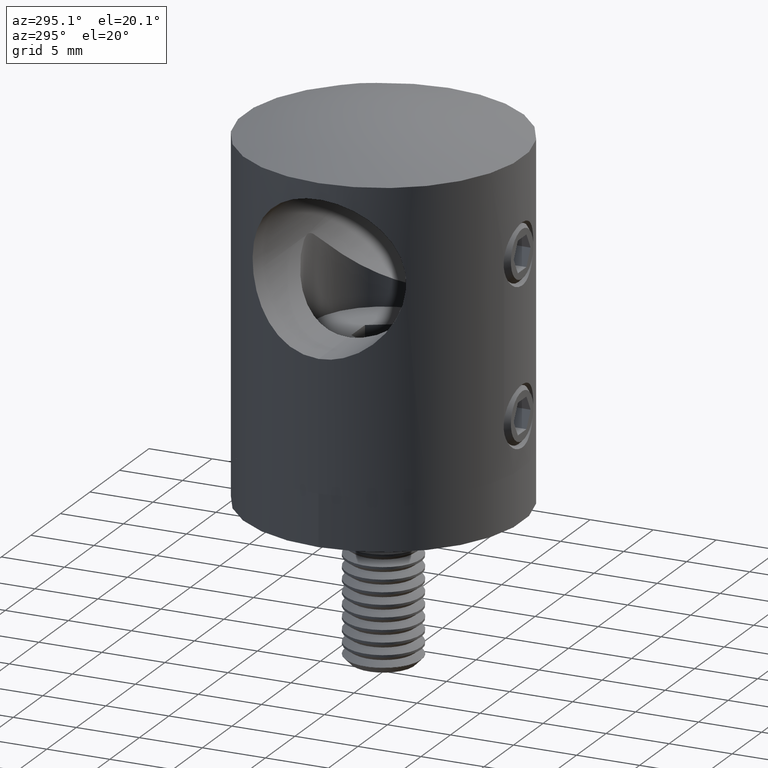
[diagram: clean part render]
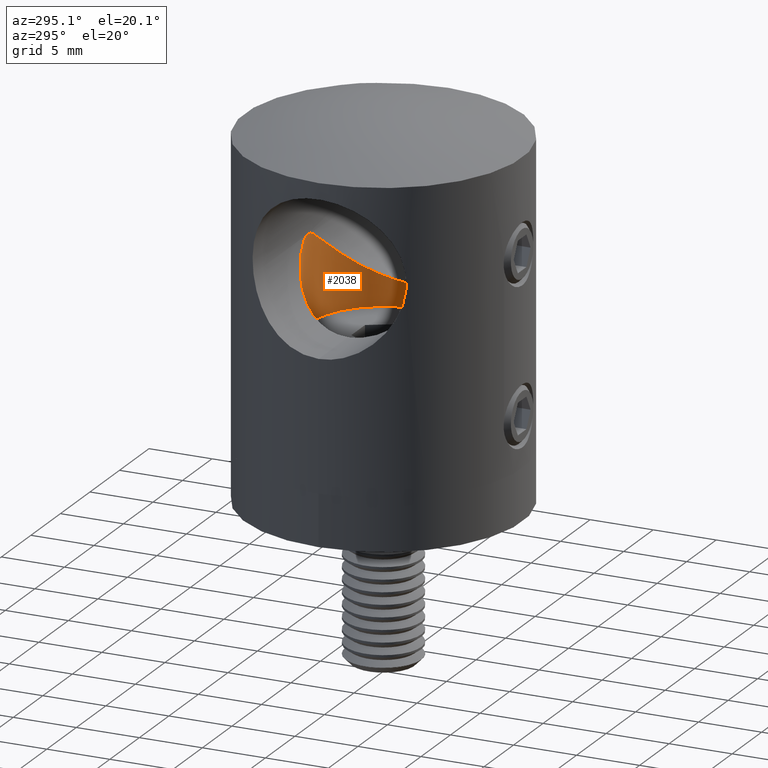
[diagram: same view with one face highlighted and labeled with its STEP entity id]
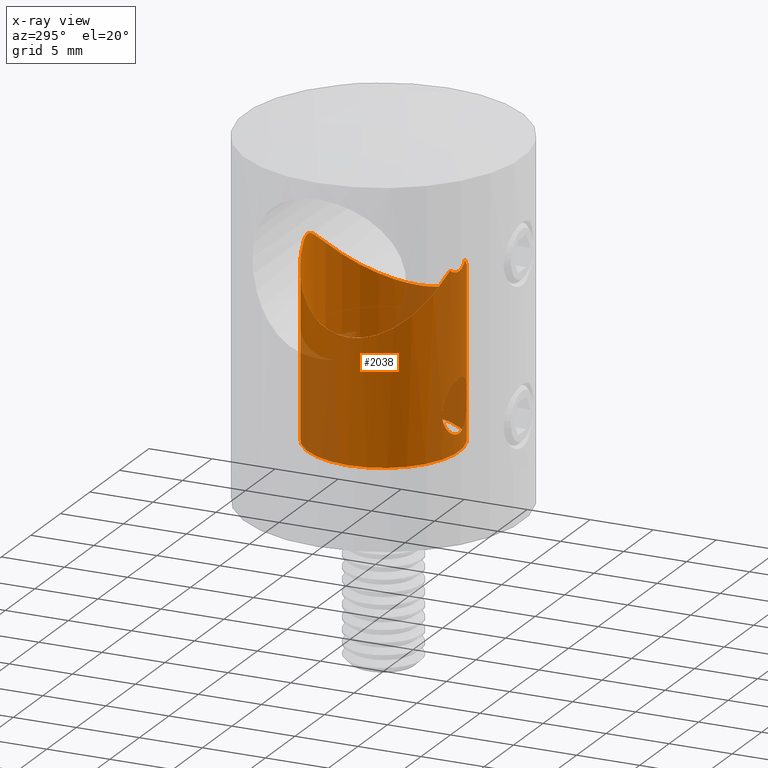
[diagram: x-ray of the same camera — body ghosted, the highlighted face saturated]
A machine part, auxiliary view. The second image highlights one B-rep face of the part: STEP entity #2038.
The next image is the same camera in x-ray: the body ghosted, the highlighted face saturated — about 33% of this face is hidden behind the body in this view.
In plain terms, the highlighted cylindrical surface (bore or boss wall) has radius 6 mm, axis along (-0, -0, -1).
Its self-contained STEP definition (entity closure, byte-faithful):
#235 = CARTESIAN_POINT ( 'NONE',  ( 0.8801635977738078200, -5.935946949044834200, 14.49004079695533600 ) ) ;
#311 = CARTESIAN_POINT ( 'NONE',  ( -0.1149597397000388500, -5.999984494786469100, 14.30004430061299700 ) ) ;
#462 = CARTESIAN_POINT ( 'NONE',  ( -1.677594955765174600, -5.764126152619212500, 2.707790437232916700 ) ) ;
#533 = CARTESIAN_POINT ( 'NONE',  ( -5.421010862427522200E-017, -6.000000000000001800, 1.900000000000007200 ) ) ;
#552 = FACE_BOUND ( 'NONE', #20702, .T. ) ;
#593 = CARTESIAN_POINT ( 'NONE',  ( -1.974343393290134400, 5.668232699227719900, 14.14100178713926900 ) ) ;
#612 = CARTESIAN_POINT ( 'NONE',  ( -0.2773106023340089500, -5.995110587510879400, 1.913857049664069200 ) ) ;
#680 = CARTESIAN_POINT ( 'NONE',  ( -0.1370357647622484900, -6.000018211104130500, 6.100052031729359400 ) ) ;
#750 = CARTESIAN_POINT ( 'NONE',  ( 2.086195265504057000, -5.625710555255438700, 4.277106224398222500 ) ) ;
#801 = CARTESIAN_POINT ( 'NONE',  ( -1.332703421794332800, 5.852720188143624800, 14.67597872737485600 ) ) ;
#830 = EDGE_CURVE ( 'NONE', #7178, #7178, #2639, .T. ) ;
#873 = CARTESIAN_POINT ( 'NONE',  ( -0.9904083631493659800, 5.920263785117187500, 14.92451375343655900 ) ) ;
#1094 = CARTESIAN_POINT ( 'NONE',  ( 5.605361300588310900, -2.179277337316793100, 10.68777264113116800 ) ) ;
#1170 = CARTESIAN_POINT ( 'NONE',  ( 4.796370260078870000, 3.622636291200091600, 11.47941165405563300 ) ) ;
#1247 = CARTESIAN_POINT ( 'NONE',  ( 5.385464049383036100, 2.652474965956620200, 10.90336773577465100 ) ) ;
#1433 = ORIENTED_EDGE ( 'NONE', *, *, #830, .T. ) ;
#2031 = CARTESIAN_POINT ( 'NONE',  ( -0.2299441652094728900, -5.996634862554706100, 14.30956275673135500 ) ) ;
#2038 = ADVANCED_FACE ( 'NONE', ( #552, #12456, #9735 ), #14089, .F. ) ;
#2104 = CARTESIAN_POINT ( 'NONE',  ( 1.990963533487665200, -5.660313271408463200, 3.318295880892016200 ) ) ;
#2181 = CARTESIAN_POINT ( 'NONE',  ( 1.388251816607981800, -5.838037281970530400, 5.581575950864485800 ) ) ;
#2257 = CARTESIAN_POINT ( 'NONE',  ( -0.6799031944775879600, -5.962726470154970900, 5.991631115680869300 ) ) ;
#2307 = CARTESIAN_POINT ( 'NONE',  ( -5.058933925122087100, -3.248349520662636300, 11.22299575467066600 ) ) ;
#2325 = CARTESIAN_POINT ( 'NONE',  ( 2.099901555218821200, -5.620534980703876500, 3.860305477660864500 ) ) ;
#2395 = CARTESIAN_POINT ( 'NONE',  ( -1.056301083882023900, -5.907416619898390800, 5.820119853568162000 ) ) ;
#2452 = CARTESIAN_POINT ( 'NONE',  ( -4.389148418959240200, -4.106772419858628200, 11.87542505124078000 ) ) ;
#2471 = CARTESIAN_POINT ( 'NONE',  ( -0.2760850920997860400, -5.995199655506469000, 6.086402343784770100 ) ) ;
#2527 = CARTESIAN_POINT ( 'NONE',  ( 1.488808073474398000, 5.822726451356348100, 14.56400330598997400 ) ) ;
#2601 = CARTESIAN_POINT ( 'NONE',  ( 6.002171018118881200, -0.1365986633456808300, 10.29786457832679500 ) ) ;
#2639 = B_SPLINE_CURVE_WITH_KNOTS ( 'NONE', 3,
 ( #9266, #21340, #18842, #8496, #7052, #8796, #17873, #7518, #12169, #16029, #4837, #2104, #10887, #4208, #2325, #14596, #750, #11033, #5656, #12629, #9300, #9068, #10961, #2181, #9216, #12704, #7637, #14451, #5728, #12853, #5808, #680, #2471, #3923, #2257, #12776, #2395, #7560, #16326, #21294, #5958, #3994, #17919, #18067, #7413, #19485, #19411, #21148, #10813, #17840, #462, #16027, #16101, #17769, #7488, #21221, #12551, #612, #21367, #533 ),
 .UNSPECIFIED., .T., .F.,
 ( 4, 2, 2, 2, 2, 2, 2, 2, 2, 2, 2, 2, 2, 2, 2, 2, 2, 2, 2, 2, 2, 2, 2, 2, 2, 2, 2, 2, 2, 4 ),
 ( 0.0000000000000000000, 0.0004135997285890928200, 0.0008271994571781854200, 0.001240799185767278200, 0.001654398914356370600, 0.002481598371534556400, 0.002895198100123648800, 0.003308797828712741300, 0.003722397557301833300, 0.004135997285890926100, 0.004549597014480017700, 0.004963196743069110200, 0.005376796471658201700, 0.005790396200247294200, 0.006203995928836386600, 0.006617595657425478200, 0.007031195386014570600, 0.007444795114603662200, 0.007858394843192756400, 0.008271994571781848800, 0.009099194028960033700, 0.009512793757549127900, 0.009926393486138223800, 0.01033999321472731600, 0.01075359294331641200, 0.01158079240049460000, 0.01199439212908369600, 0.01240799185767279400, 0.01282159158626188800, 0.01323519131485098400 ),
 .UNSPECIFIED. ) ;
#3614 = CARTESIAN_POINT ( 'NONE',  ( -1.175500511496628200, -5.884434095120775900, 14.65622688438423700 ) ) ;
#3690 = CARTESIAN_POINT ( 'NONE',  ( -0.5626821485871803500, -5.974533160696336300, 14.37362251894191800 ) ) ;
#3888 = CARTESIAN_POINT ( 'NONE',  ( 6.000000000000000900, 0.0000000000000000000, 0.5000000000000073300 ) ) ;
#3923 = CARTESIAN_POINT ( 'NONE',  ( -0.5485102145950172500, -5.976435261253112900, 6.031854882297268200 ) ) ;
#3978 = CARTESIAN_POINT ( 'NONE',  ( 3.553350730415342900, 4.846567782642080300, 12.68099178015578100 ) ) ;
#3994 = CARTESIAN_POINT ( 'NONE',  ( -1.991790499454957100, -5.660027428170497600, 4.679568982034624000 ) ) ;
#4115 = CARTESIAN_POINT ( 'NONE',  ( -5.941325751448900400, 0.8632317753215782400, 10.35770454943839500 ) ) ;
#4190 = CARTESIAN_POINT ( 'NONE',  ( -4.097552072176873700, 4.396346292867046500, 12.15799220229235900 ) ) ;
#4208 = CARTESIAN_POINT ( 'NONE',  ( 2.086293483836122700, -5.625674900985020000, 3.723311567177205000 ) ) ;
#4264 = CARTESIAN_POINT ( 'NONE',  ( -0.2229703841922922900, 5.999711123325627500, 15.29842435081656600 ) ) ;
#4335 = CARTESIAN_POINT ( 'NONE',  ( 5.933619609980066700, -0.9863462721743108100, 10.36528464065996500 ) ) ;
#4462 = ORIENTED_EDGE ( 'NONE', *, *, #18579, .T. ) ;
#4489 = CARTESIAN_POINT ( 'NONE',  ( 5.898167603611800500, 1.120429336238712500, 10.40014097301561200 ) ) ;
#4573 = DIRECTION ( 'NONE',  ( -0.0000000000000000000, -0.0000000000000000000, -1.000000000000000000 ) ) ;
#4837 = CARTESIAN_POINT ( 'NONE',  ( 1.833344241584947000, -5.714120875558134700, 2.940059396667278300 ) ) ;
#5272 = CARTESIAN_POINT ( 'NONE',  ( -0.4532239645654775900, -5.983902742513780700, 14.34637144909259200 ) ) ;
#5656 = CARTESIAN_POINT ( 'NONE',  ( 1.992054000542895300, -5.659936331073166300, 4.678887825467367800 ) ) ;
#5712 = CARTESIAN_POINT ( 'NONE',  ( 0.7984645737163839100, 5.949732835224148500, 15.05108044348809700 ) ) ;
#5728 = CARTESIAN_POINT ( 'NONE',  ( 0.5499592264330737100, -5.976299791409975800, 6.031457407392960800 ) ) ;
#5788 = CARTESIAN_POINT ( 'NONE',  ( -5.907493718958915200, 1.070115368251027600, 10.39097219733359800 ) ) ;
#5808 = CARTESIAN_POINT ( 'NONE',  ( 0.1386258689238649400, -5.999981683544565800, 6.099947667266898000 ) ) ;
#5867 = CARTESIAN_POINT ( 'NONE',  ( -1.596766314802774200, -5.793581575468227400, 14.47328231479936100 ) ) ;
#5937 = CARTESIAN_POINT ( 'NONE',  ( -1.817385701289969900, 5.720573112531241100, 14.27749625758165000 ) ) ;
#5958 = CARTESIAN_POINT ( 'NONE',  ( -1.832704397464457200, -5.714346342055216100, 5.061775951773686400 ) ) ;
#6016 = CARTESIAN_POINT ( 'NONE',  ( -3.630156631122732200, -4.789113362133579500, 12.60748802911717600 ) ) ;
#6085 = CARTESIAN_POINT ( 'NONE',  ( 4.861354902096104000, -3.521632493673705800, 11.41579888962308900 ) ) ;
#6101 = CARTESIAN_POINT ( 'NONE',  ( 0.0000000000000000000, 0.0000000000000000000, 16.39999999999999900 ) ) ;
#6159 = CARTESIAN_POINT ( 'NONE',  ( 3.641122164734124800, -4.781310034785559700, 12.59701020878115300 ) ) ;
#6238 = CARTESIAN_POINT ( 'NONE',  ( 5.933879885055172400, 0.9127216642812178100, 10.36502605593457100 ) ) ;
#6550 = VERTEX_POINT ( 'NONE', #17566 ) ;
#7021 = CARTESIAN_POINT ( 'NONE',  ( 0.2262906796923143900, -5.996776658554771300, 14.30915733862779900 ) ) ;
#7052 = CARTESIAN_POINT ( 'NONE',  ( 0.6812341139050355200, -5.962577447961941800, 2.008811109739972300 ) ) ;
#7178 = VERTEX_POINT ( 'NONE', #16992 ) ;
#7413 = CARTESIAN_POINT ( 'NONE',  ( -2.100005955277873600, -5.620495973474043600, 4.138307198453890800 ) ) ;
#7466 = CARTESIAN_POINT ( 'NONE',  ( 4.077951799122588200, 4.414275683407217900, 12.17691918122648100 ) ) ;
#7488 = CARTESIAN_POINT ( 'NONE',  ( -0.9349122421464504100, -5.928103206872799900, 2.114551264284959300 ) ) ;
#7518 = CARTESIAN_POINT ( 'NONE',  ( 1.282773082496065000, -5.862417377531365900, 2.331696866173552900 ) ) ;
#7560 = CARTESIAN_POINT ( 'NONE',  ( -1.282893921177701100, -5.862382304820062700, 5.668170089699676100 ) ) ;
#7617 = CARTESIAN_POINT ( 'NONE',  ( -3.569507124002474700, 4.834915987140045800, 12.66555515773551500 ) ) ;
#7637 = CARTESIAN_POINT ( 'NONE',  ( 0.9337857770029868200, -5.928263369488840700, 5.885943294885849200 ) ) ;
#7695 = CARTESIAN_POINT ( 'NONE',  ( -0.8138401773423792300, 5.947639583694001300, 15.04176105867922800 ) ) ;
#7839 = CARTESIAN_POINT ( 'NONE',  ( 4.164476997352461600, -4.333108307644922200, 12.09328090130381900 ) ) ;
#7987 = CARTESIAN_POINT ( 'NONE',  ( 5.993465899922820300, -0.3514920590932021900, 10.30642794072177400 ) ) ;
#8058 = CARTESIAN_POINT ( 'NONE',  ( 1.264911064067350700, -5.865151319446074000, 14.72369453857598600 ) ) ;
#8130 = CARTESIAN_POINT ( 'NONE',  ( 5.070355812523002800, -3.213434119294578600, 11.21174429214072000 ) ) ;
#8496 = CARTESIAN_POINT ( 'NONE',  ( 0.5472454995192380700, -5.976522812652007100, 1.967890563847576500 ) ) ;
#8766 = CARTESIAN_POINT ( 'NONE',  ( -0.7772732330139018300, -5.950420490170333900, 14.44585998011449500 ) ) ;
#8796 = CARTESIAN_POINT ( 'NONE',  ( 0.9351004188317552100, -5.928068568057646800, 2.114661748824999200 ) ) ;
#8841 = CARTESIAN_POINT ( 'NONE',  ( 0.4498791982225744900, -5.984157958419010500, 14.34562924151062200 ) ) ;
#8916 = CARTESIAN_POINT ( 'NONE',  ( 0.5615150562986934700, -5.974648720468908700, 14.37328095333490400 ) ) ;
#9068 = CARTESIAN_POINT ( 'NONE',  ( 1.669065092636238500, -5.763722404570113900, 5.281706429908801700 ) ) ;
#9080 = EDGE_CURVE ( 'NONE', #6550, #11839, #20345, .T. ) ;
#9194 = CARTESIAN_POINT ( 'NONE',  ( -5.946055537342354000, -0.8300710709480136900, 10.35305359656856400 ) ) ;
#9216 = CARTESIAN_POINT ( 'NONE',  ( 1.283385613909028100, -5.862276931221736700, 5.667804354879554500 ) ) ;
#9266 = CARTESIAN_POINT ( 'NONE',  ( -5.421010862427522200E-017, -6.000000000000001800, 1.900000000000007200 ) ) ;
#9277 = CARTESIAN_POINT ( 'NONE',  ( -4.813579456712679900, 3.599789657321296900, 11.46263072592644700 ) ) ;
#9300 = CARTESIAN_POINT ( 'NONE',  ( 1.820638573103270200, -5.717652440165352300, 5.055379003986187700 ) ) ;
#9352 = CARTESIAN_POINT ( 'NONE',  ( -1.264911064067350700, -5.865151319446073200, 14.72369453857598400 ) ) ;
#9427 = CARTESIAN_POINT ( 'NONE',  ( -6.000536527366700800, -0.2001739052171296900, 10.29947226822210400 ) ) ;
#9501 = CARTESIAN_POINT ( 'NONE',  ( -2.800319949547912300, -5.316494211003008500, 13.39285986529588800 ) ) ;
#9715 = CARTESIAN_POINT ( 'NONE',  ( 5.547929425930242100, 2.293321947987471400, 10.74409475538808500 ) ) ;
#9735 = FACE_OUTER_BOUND ( 'NONE', #12859, .T. ) ;
#9789 = CARTESIAN_POINT ( 'NONE',  ( 2.807320842822787800, -5.312840968243786900, 13.38633653989425600 ) ) ;
#9862 = CARTESIAN_POINT ( 'NONE',  ( 5.996895272633159000, 0.2862921840430671100, 10.30305382305022400 ) ) ;
#10585 = CARTESIAN_POINT ( 'NONE',  ( -0.8826373464167068800, -5.935577546016087800, 14.49118677209012200 ) ) ;
#10813 = CARTESIAN_POINT ( 'NONE',  ( -1.991246174694209200, -5.660214997163486700, 3.319050225171499900 ) ) ;
#10887 = CARTESIAN_POINT ( 'NONE',  ( 2.031893931028322200, -5.645550960297868800, 3.451744546214746900 ) ) ;
#10940 = CARTESIAN_POINT ( 'NONE',  ( 4.330611818442055700, 4.168268543179412000, 11.93220180396378200 ) ) ;
#10961 = CARTESIAN_POINT ( 'NONE',  ( 1.581278183707604900, -5.788737489101017700, 5.388590976637336100 ) ) ;
#11016 = CARTESIAN_POINT ( 'NONE',  ( -3.361448588209259700, -4.980719416338415900, 12.86440435271702800 ) ) ;
#11033 = CARTESIAN_POINT ( 'NONE',  ( 2.032077313730785000, -5.645484189008472600, 4.547412400692979700 ) ) ;
#11084 = CARTESIAN_POINT ( 'NONE',  ( -5.763405681466280400, 1.680748575675977700, 10.53257308362807300 ) ) ;
#11159 = CARTESIAN_POINT ( 'NONE',  ( 0.4164247023968396000, 5.988610602907670900, 15.23576298494401200 ) ) ;
#11230 = CARTESIAN_POINT ( 'NONE',  ( -5.827112224364638500, -1.444885380224743700, 10.46997685911353300 ) ) ;
#11450 = CARTESIAN_POINT ( 'NONE',  ( 4.751897198670479700, -3.667659259264588900, 11.52251748310811200 ) ) ;
#11528 = CARTESIAN_POINT ( 'NONE',  ( 5.448222991157091000, -2.542767010236418800, 10.84196997935652700 ) ) ;
#11600 = CARTESIAN_POINT ( 'NONE',  ( 5.805834339480322900, 1.528407864514953900, 10.49088503742910900 ) ) ;
#11651 = CARTESIAN_POINT ( 'NONE',  ( 1.264911064067350700, -5.865151319446074000, 14.72369453857598600 ) ) ;
#11839 = VERTEX_POINT ( 'NONE', #11651 ) ;
#11900 = CIRCLE ( 'NONE', #21313, 6.000000000000000900 ) ;
#12030 = VERTEX_POINT ( 'NONE', #3888 ) ;
#12169 = CARTESIAN_POINT ( 'NONE',  ( 1.389511688007988100, -5.837728522015407200, 2.419587935187493200 ) ) ;
#12320 = CARTESIAN_POINT ( 'NONE',  ( 1.175164696890083100, -5.884506518761392100, 14.65597348449915700 ) ) ;
#12456 = FACE_OUTER_BOUND ( 'NONE', #20552, .T. ) ;
#12551 = CARTESIAN_POINT ( 'NONE',  ( -0.5468734143387938800, -5.976552651432204900, 1.967803393346849300 ) ) ;
#12629 = CARTESIAN_POINT ( 'NONE',  ( 1.885684773470323500, -5.696257661656740200, 4.934537723020821600 ) ) ;
#12683 = CARTESIAN_POINT ( 'NONE',  ( -5.999423518707703600, 0.2311398965319164700, 10.30056703071898400 ) ) ;
#12704 = CARTESIAN_POINT ( 'NONE',  ( 1.056572057962529300, -5.907370391185574800, 5.819974034561118600 ) ) ;
#12756 = CARTESIAN_POINT ( 'NONE',  ( -5.987287593646464700, 0.4437432294940630300, 10.31250500155602100 ) ) ;
#12776 = CARTESIAN_POINT ( 'NONE',  ( -0.9335114993840605300, -5.928316084038139700, 5.886112174640410400 ) ) ;
#12853 = CARTESIAN_POINT ( 'NONE',  ( 0.2777402781516119000, -5.995120906657181300, 6.086177050655782800 ) ) ;
#12859 = EDGE_LOOP ( 'NONE', ( #12964, #13076 ) ) ;
#12911 = CARTESIAN_POINT ( 'NONE',  ( -5.409869706024877300, 2.623633317661039100, 10.87957111080283200 ) ) ;
#12964 = ORIENTED_EDGE ( 'NONE', *, *, #9080, .F. ) ;
#12980 = CARTESIAN_POINT ( 'NONE',  ( -5.589688092112501400, -2.217622435427866600, 10.70315258963418400 ) ) ;
#13056 = CARTESIAN_POINT ( 'NONE',  ( 4.410100469293023900, -4.084117966703208100, 11.85508844831131900 ) ) ;
#13076 = ORIENTED_EDGE ( 'NONE', *, *, #18263, .T. ) ;
#13201 = CARTESIAN_POINT ( 'NONE',  ( 5.850397280123098100, -1.393619994045684600, 10.44713393191579700 ) ) ;
#13214 = CARTESIAN_POINT ( 'NONE',  ( 0.0000000000000000000, 0.0000000000000000000, 0.5000000000000073300 ) ) ;
#13289 = DIRECTION ( 'NONE',  ( 1.000000000000000000, 0.0000000000000000000, 0.0000000000000000000 ) ) ;
#13505 = DIRECTION ( 'NONE',  ( 0.0000000000000000000, 0.0000000000000000000, -1.000000000000000000 ) ) ;
#14066 = CARTESIAN_POINT ( 'NONE',  ( -1.081214229965739700, -5.902635451980706300, 14.59622828128035900 ) ) ;
#14089 = CYLINDRICAL_SURFACE ( 'NONE', #20922, 6.000000000000000900 ) ;
#14353 = CARTESIAN_POINT ( 'NONE',  ( 2.411922243852668000, 5.503524362304248500, 13.75284396350251400 ) ) ;
#14451 = CARTESIAN_POINT ( 'NONE',  ( 0.6810570200218701900, -5.962585327761368100, 5.991205495255797200 ) ) ;
#14508 = CARTESIAN_POINT ( 'NONE',  ( -4.349707622789691400, 4.148382378625306900, 11.91368474511275900 ) ) ;
#14578 = CARTESIAN_POINT ( 'NONE',  ( -2.727811131185996300, 5.354134445416146800, 13.46036226895771100 ) ) ;
#14596 = CARTESIAN_POINT ( 'NONE',  ( 2.100097390676808600, -5.620461810260685800, 4.136718875267625600 ) ) ;
#14654 = CARTESIAN_POINT ( 'NONE',  ( -0.4324952049777459100, 5.987461928851964800, 15.22973110363804000 ) ) ;
#14728 = CARTESIAN_POINT ( 'NONE',  ( 5.621077130031295600, 2.108131344790408000, 10.67231651392111200 ) ) ;
#14797 = CARTESIAN_POINT ( 'NONE',  ( 1.599738756847426400, -5.792940522130503900, 14.47103936152139300 ) ) ;
#14867 = CARTESIAN_POINT ( 'NONE',  ( 1.913646664022783600, -5.695917087882373100, 14.19681547464132100 ) ) ;
#15802 = CARTESIAN_POINT ( 'NONE',  ( 1.078995017176342100, -5.903043612716193600, 14.59489560716012900 ) ) ;
#15877 = CARTESIAN_POINT ( 'NONE',  ( -1.264911064067350700, -5.865151319446073200, 14.72369453857598400 ) ) ;
#16027 = CARTESIAN_POINT ( 'NONE',  ( -1.388843066986826800, -5.837892061353310100, 2.418972633787931100 ) ) ;
#16029 = CARTESIAN_POINT ( 'NONE',  ( 1.677500159237451200, -5.764135783203782300, 2.707802910303008600 ) ) ;
#16082 = CARTESIAN_POINT ( 'NONE',  ( 2.708429892200995500, 5.364043863546903000, 13.47837441290136200 ) ) ;
#16101 = CARTESIAN_POINT ( 'NONE',  ( -1.281623710314719200, -5.862660541099056200, 2.330856865501477400 ) ) ;
#16160 = CARTESIAN_POINT ( 'NONE',  ( -5.428537054597947900, -2.583712931809057300, 10.86126593429962600 ) ) ;
#16229 = CARTESIAN_POINT ( 'NONE',  ( -3.295515760246567400, 5.024667660749353000, 12.92711351346192900 ) ) ;
#16304 = CARTESIAN_POINT ( 'NONE',  ( -2.434350739322355600, 5.493770248822911200, 13.73237411049495500 ) ) ;
#16326 = CARTESIAN_POINT ( 'NONE',  ( -1.388036528353558100, -5.838097357248577700, 5.581828602384570500 ) ) ;
#16380 = CARTESIAN_POINT ( 'NONE',  ( 0.9773194002105434200, 5.922416735734996600, 14.93329048369447600 ) ) ;
#16451 = CARTESIAN_POINT ( 'NONE',  ( 5.009953077376302100, 3.323587466433379300, 11.27086011848898100 ) ) ;
#16479 = B_SPLINE_CURVE_WITH_KNOTS ( 'NONE', 3,
 ( #15877, #3614, #14066, #10585, #8766, #3690, #5272, #2031, #311, #17391, #7021, #8841, #8916, #19254, #235, #15802, #12320, #19105 ),
 .UNSPECIFIED., .F., .F.,
 ( 4, 2, 2, 2, 2, 2, 2, 2, 4 ),
 ( 0.0009011508913145202100, 0.001240935737526901600, 0.001580720583739282900, 0.001920505429951664400, 0.002260290276164045900, 0.002600075122376427400, 0.002939859968588808500, 0.003279644814801190000, 0.003619429661013571500 ),
 .UNSPECIFIED. ) ;
#16595 = CARTESIAN_POINT ( 'NONE',  ( 5.750024841693119400, 1.725670938667254200, 10.54571646612261300 ) ) ;
#16992 = CARTESIAN_POINT ( 'NONE',  ( 0.0000000000000000000, -6.000000000000000900, 1.900000000000006800 ) ) ;
#17391 = CARTESIAN_POINT ( 'NONE',  ( 0.1133355006463630100, -6.000015395290515300, 14.29995601345279300 ) ) ;
#17566 = CARTESIAN_POINT ( 'NONE',  ( -1.264911064067350700, -5.865151319446073200, 14.72369453857598400 ) ) ;
#17769 = CARTESIAN_POINT ( 'NONE',  ( -1.054979748196500600, -5.907653145361193100, 2.179116733785587000 ) ) ;
#17822 = CARTESIAN_POINT ( 'NONE',  ( 3.279493565758556000, 5.035224027108561100, 12.94234448823002600 ) ) ;
#17840 = CARTESIAN_POINT ( 'NONE',  ( -1.833295944888411600, -5.714140928245533300, 2.939791683323970800 ) ) ;
#17873 = CARTESIAN_POINT ( 'NONE',  ( 1.055318436482936700, -5.907600806349175400, 2.179273462287427700 ) ) ;
#17898 = CARTESIAN_POINT ( 'NONE',  ( -5.989700101884644700, -0.4099842990500429700, 10.31013204877728700 ) ) ;
#17919 = CARTESIAN_POINT ( 'NONE',  ( -2.031781744484791200, -5.645590759985886100, 4.548445105721373100 ) ) ;
#17974 = CARTESIAN_POINT ( 'NONE',  ( -2.507134024453778300, -5.460674220132866600, 13.66546216704488300 ) ) ;
#18050 = CARTESIAN_POINT ( 'NONE',  ( -1.496613832176583800, 5.812744150606175000, 14.54474144335918400 ) ) ;
#18067 = CARTESIAN_POINT ( 'NONE',  ( -2.085970634324527700, -5.625794041661615500, 4.278667550940393300 ) ) ;
#18115 = CARTESIAN_POINT ( 'NONE',  ( 1.801804584593387000, 5.732333691944835300, 14.29368427527222200 ) ) ;
#18188 = CARTESIAN_POINT ( 'NONE',  ( 2.517395769315742300, -5.456027269670411100, 13.65605029976436700 ) ) ;
#18261 = CARTESIAN_POINT ( 'NONE',  ( 5.295683430303602000, 2.827048439122371400, 10.99131489956747900 ) ) ;
#18263 = EDGE_CURVE ( 'NONE', #6550, #11839, #16479, .T. ) ;
#18401 = CARTESIAN_POINT ( 'NONE',  ( 5.983129269684197600, 0.4961405737882233500, 10.31659504282034200 ) ) ;
#18579 = EDGE_CURVE ( 'NONE', #12030, #12030, #11900, .T. ) ;
#18842 = CARTESIAN_POINT ( 'NONE',  ( 0.2773110508732141700, -5.995114773543329000, 1.913844450117064800 ) ) ;
#19105 = CARTESIAN_POINT ( 'NONE',  ( 1.264911064067350700, -5.865151319446074000, 14.72369453857598600 ) ) ;
#19254 = CARTESIAN_POINT ( 'NONE',  ( 0.7767419019878326600, -5.950495652392934400, 14.44563021148465000 ) ) ;
#19411 = CARTESIAN_POINT ( 'NONE',  ( -2.086440083120673500, -5.625620362231071400, 3.724349182297993300 ) ) ;
#19485 = CARTESIAN_POINT ( 'NONE',  ( -2.099994040831215400, -5.620500425096848200, 3.861512015611140700 ) ) ;
#19533 = CARTESIAN_POINT ( 'NONE',  ( -5.912904066232471200, -1.039469163014716100, 10.38565281409713000 ) ) ;
#19681 = CARTESIAN_POINT ( 'NONE',  ( -5.571836463573946600, 2.263113280056099800, 10.72067117908778800 ) ) ;
#19758 = CARTESIAN_POINT ( 'NONE',  ( -5.818775544866986700, 1.478336937022124400, 10.47816903861475500 ) ) ;
#19836 = CARTESIAN_POINT ( 'NONE',  ( -4.849692580327479500, -3.551152690110702000, 11.42740784429584600 ) ) ;
#19989 = DIRECTION ( 'NONE',  ( -1.000000000000000000, 0.0000000000000000000, 0.0000000000000000000 ) ) ;
#20122 = CARTESIAN_POINT ( 'NONE',  ( 3.369089720666349000, -4.975596840831981300, 12.85713637263174500 ) ) ;
#20345 = B_SPLINE_CURVE_WITH_KNOTS ( 'NONE', 3,
 ( #9352, #5867, #21424, #17974, #9501, #11016, #6016, #21347, #2452, #19836, #2307, #16160, #12980, #21567, #11230, #19533, #9194, #17898, #9427, #12683, #12756, #4115, #5788, #19758, #11084, #19681, #12911, #21276, #9277, #14508, #4190, #7617, #16229, #14578, #16304, #593, #5937, #18050, #801, #873, #7695, #14654, #4264, #21502, #11159, #5712, #16380, #2527, #18115, #14353, #16082, #17822, #3978, #7466, #10940, #1170, #16451, #18261, #1247, #9715, #14728, #16595, #11600, #4489, #6238, #18401, #9862, #2601, #7987, #4335, #13201, #1094, #11528, #21779, #8130, #6085, #11450, #13056, #7839, #6159, #20122, #9789, #18188, #14867, #14797, #8058 ),
 .UNSPECIFIED., .F., .F.,
 ( 4, 2, 2, 2, 2, 2, 2, 2, 2, 2, 2, 2, 2, 2, 2, 2, 2, 2, 2, 2, 2, 2, 2, 2, 2, 2, 2, 2, 2, 2, 2, 2, 2, 2, 2, 2, 2, 2, 2, 2, 2, 2, 4 ),
 ( 0.03402963844335753900, 0.03530216858082106700, 0.03657469871828460100, 0.03784722885574812900, 0.03911975899321165600, 0.04039228913067519100, 0.04166481926813871800, 0.04230108433687047900, 0.04293734940560224600, 0.04357361447433401300, 0.04420987954306577300, 0.04484614461179753400, 0.04548240968052930100, 0.04675493981799282900, 0.04802746995545635600, 0.04930000009291988400, 0.05057253023038341100, 0.05184506036784693900, 0.05248132543657869900, 0.05311759050531046600, 0.05375385557404223400, 0.05439012064277400100, 0.05502638571150576800, 0.05566265078023752800, 0.05693518091770105600, 0.05820771105516459000, 0.05948024119262812500, 0.06075277133009164600, 0.06202530146755518000, 0.06266156653628694700, 0.06329783160501870100, 0.06393409667375046800, 0.06457036174248223500, 0.06520662681121400200, 0.06584289187994577000, 0.06711542201740930400, 0.06838795215487281100, 0.06902421722360457800, 0.06966048229233634500, 0.07093301242979988000, 0.07220554256726341400, 0.07347807270472694900, 0.07475060284219046900 ),
 .UNSPECIFIED. ) ;
#20552 = EDGE_LOOP ( 'NONE', ( #4462 ) ) ;
#20702 = EDGE_LOOP ( 'NONE', ( #1433 ) ) ;
#20922 = AXIS2_PLACEMENT_3D ( 'NONE', #6101, #4573, #19989 ) ;
#21148 = CARTESIAN_POINT ( 'NONE',  ( -2.032103204105485200, -5.645475466979344300, 3.452485469036112400 ) ) ;
#21221 = CARTESIAN_POINT ( 'NONE',  ( -0.6805891605157771100, -5.962656029525707200, 2.008574322222096000 ) ) ;
#21276 = CARTESIAN_POINT ( 'NONE',  ( -5.027469702046613700, 3.297679550336889400, 11.25374927840533300 ) ) ;
#21294 = CARTESIAN_POINT ( 'NONE',  ( -1.679082131009260700, -5.763747723864387500, 5.290733017625370800 ) ) ;
#21313 = AXIS2_PLACEMENT_3D ( 'NONE', #13214, #13505, #13289 ) ;
#21340 = CARTESIAN_POINT ( 'NONE',  ( 0.1399303184415932900, -6.000000000000000900, 1.900000000000006800 ) ) ;
#21347 = CARTESIAN_POINT ( 'NONE',  ( -4.143770664199708500, -4.352333700943512800, 12.11328270114680100 ) ) ;
#21367 = CARTESIAN_POINT ( 'NONE',  ( -0.1399303184415943700, -6.000000000000003600, 1.900000000000007500 ) ) ;
#21424 = CARTESIAN_POINT ( 'NONE',  ( -1.905371062174602300, -5.698617821053200100, 14.20400022134304100 ) ) ;
#21502 = CARTESIAN_POINT ( 'NONE',  ( 0.2071425085349626300, 6.000278438267841400, 15.30151871318206100 ) ) ;
#21567 = CARTESIAN_POINT ( 'NONE',  ( -5.774478187318806000, -1.641955304654682400, 10.52169559326054000 ) ) ;
#21779 = CARTESIAN_POINT ( 'NONE',  ( 5.170379123988905000, -3.050308045370155000, 11.11393707254345400 ) ) ;